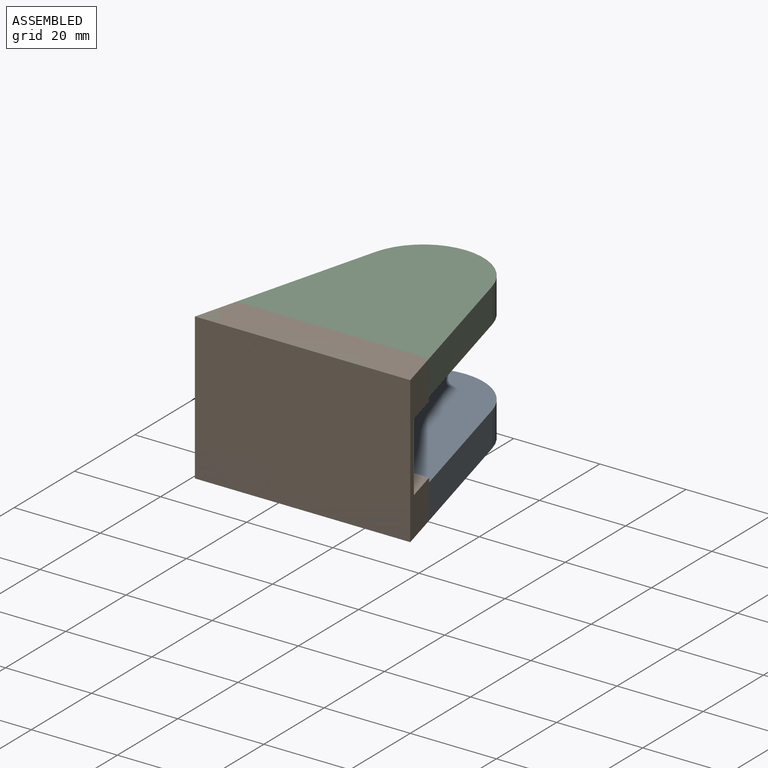
[diagram: assembled view]
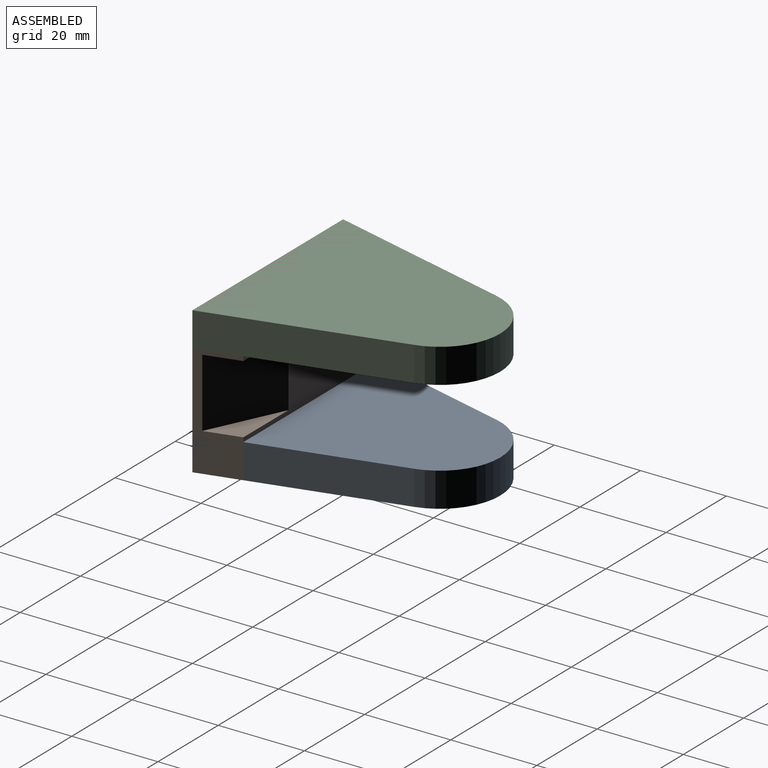
[diagram: assembled view, second angle]
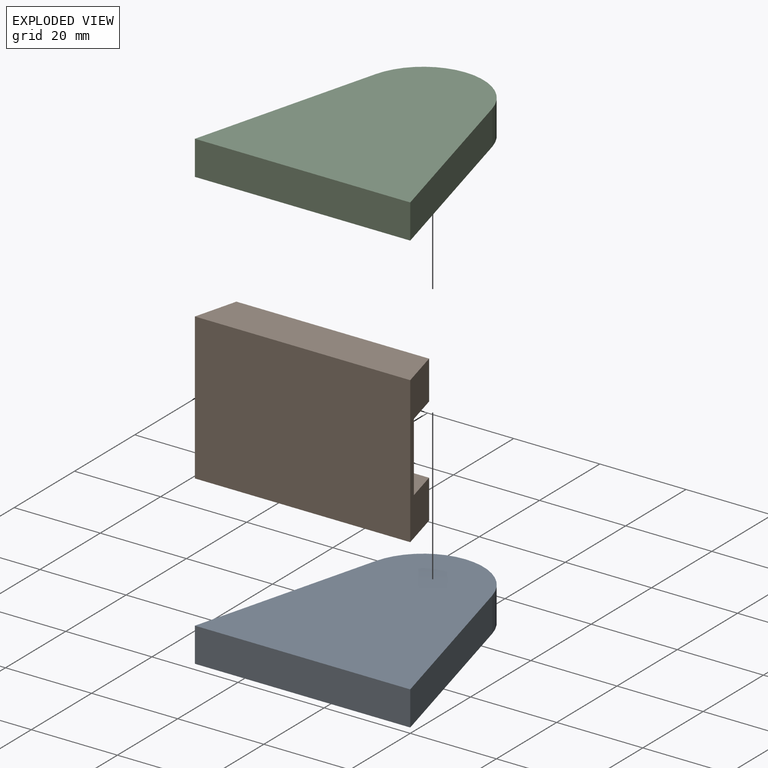
[diagram: exploded view]
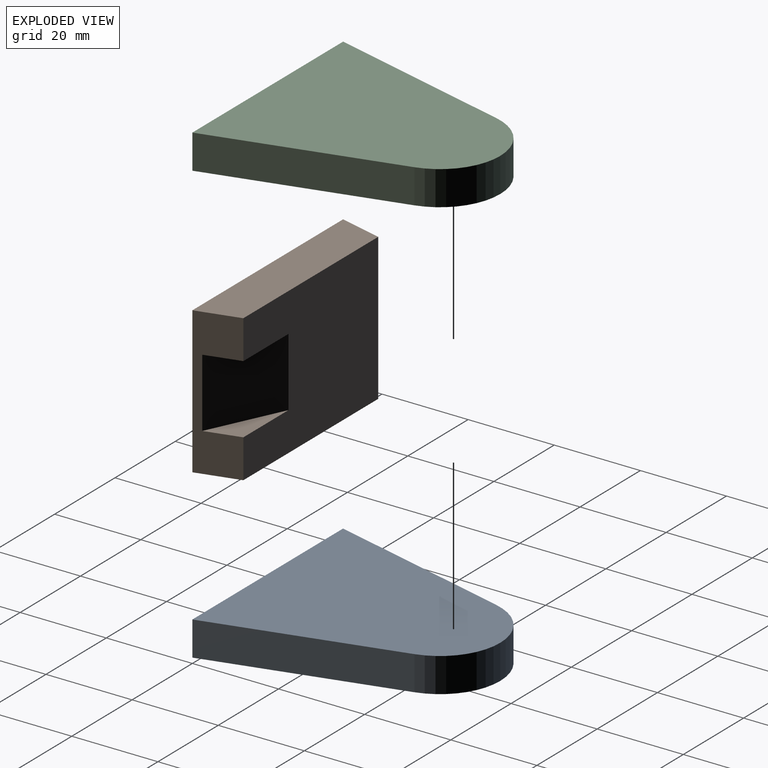
[diagram: exploded view, second angle]
ASSEMBLY  parts=3 mates=2
PART A: 6 faces, bbox 50x54x8 mm
  f0: plane 43.56x11.46mm, normal (0.97,0.25,0), area 360.4mm2, adj f1,f3,f4,f5
  f1: cylinder r=14mm len=27.08mm, axis (0,0,-1), area 294.2mm2, adj f0,f2,f4,f5
  f2: plane 43.56x11.46mm, normal (-0.97,0.25,0), area 360.4mm2, adj f1,f3,f4,f5
  f3: plane 50x8mm, normal (0,-1,0), area 400mm2, adj f0,f2,f4,f5
  f4: plane 54x50mm, normal (0,0,1), area 1888.1mm2, adj f0,f1,f2,f3
  f5: plane 54x50mm, normal (0,0,-1), area 1888.1mm2, adj f0,f1,f2,f3
PART B: 9 faces, bbox 50x10x34 mm
  f0: plane 44.74x34mm, normal (0,1,0), area 1281.5mm2, adj f1,f2,f4,f5,f6,f7,f8
  f1: plane 34x10mm, normal (0.97,0.25,0), area 218.1mm2, adj f0,f3,f4,f5,f6,f7,f8
  f2: plane 34x10mm, normal (-0.97,0.25,0), area 351.6mm2, adj f0,f3,f4,f5
  f3: plane 50x34mm, normal (0,-1,0), area 1700mm2, adj f1,f2,f4,f5
  f4: plane 50x10mm, normal (0,0,1), area 473.7mm2, adj f0,f1,f2,f3
  f5: plane 50x10mm, normal (0,0,-1), area 473.7mm2, adj f0,f1,f2,f3
  f6: plane 17.09x8.07mm, normal (0,0,-1), area 60.4mm2, adj f0,f1,f8
  f7: plane 17.09x8.07mm, normal (0,0,1), area 60.4mm2, adj f0,f1,f8
  f8: plane 17.09x16mm, normal (0.43,0.9,0), area 302.4mm2, adj f0,f1,f6,f7
PART C: same geometry as A
PLACE A t=(-25,40,-34)mm
PLACE B t=(-25,40,-34)mm
PLACE C t=(-25,40,-8)mm
MATE fastened A.f5 <-> B.f5  axis (0,0,1) through (0,0,-34)mm
MATE fastened C.f4 <-> B.f4  axis (0,0,1) through (0,0,0)mm
